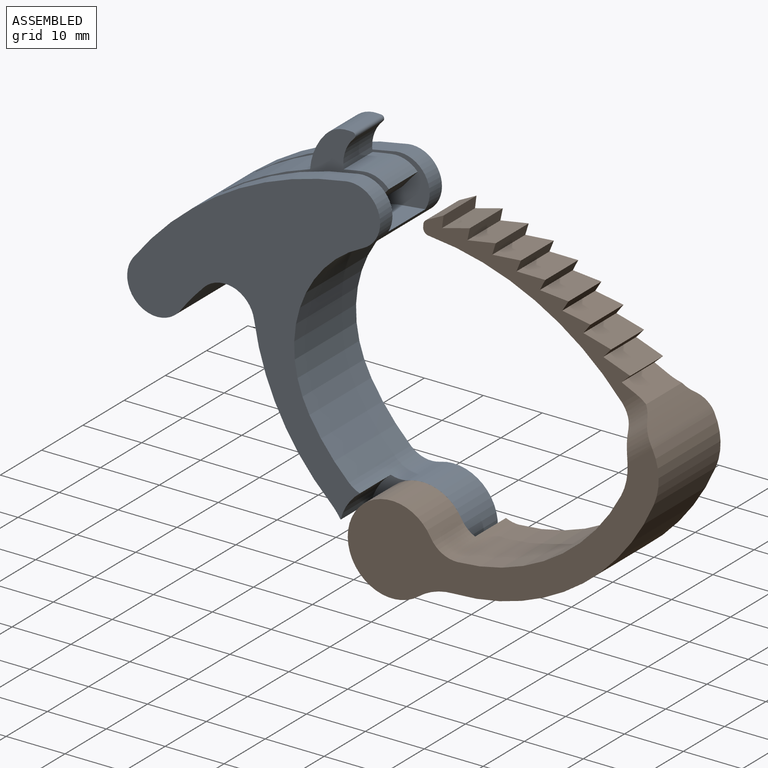
[diagram: assembled view]
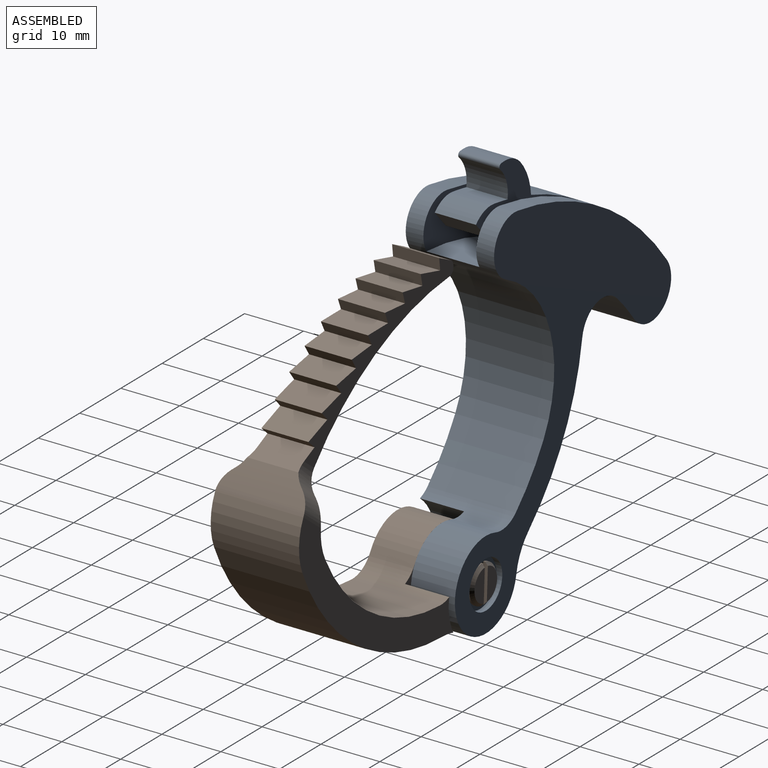
[diagram: assembled view, second angle]
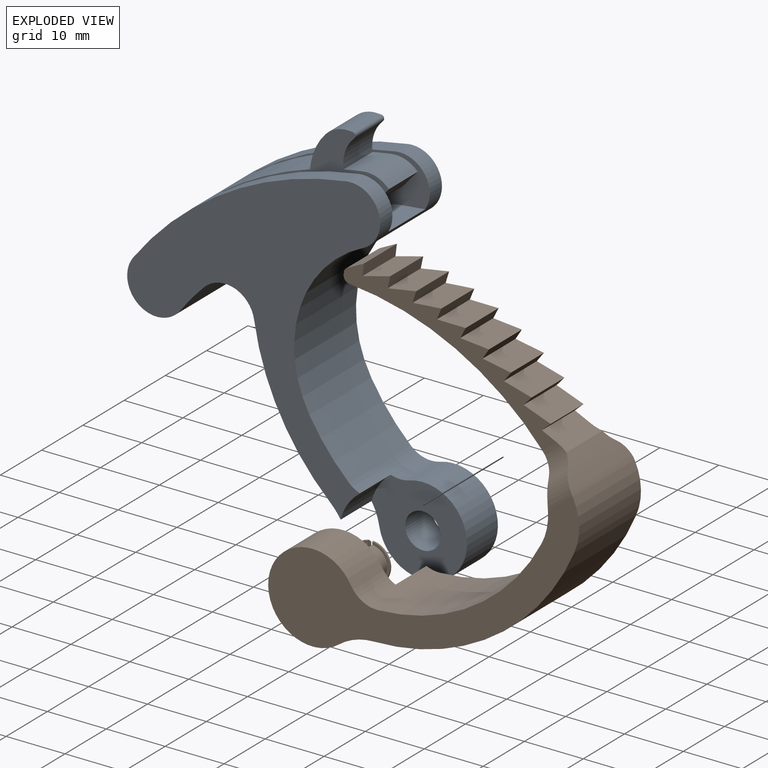
[diagram: exploded view]
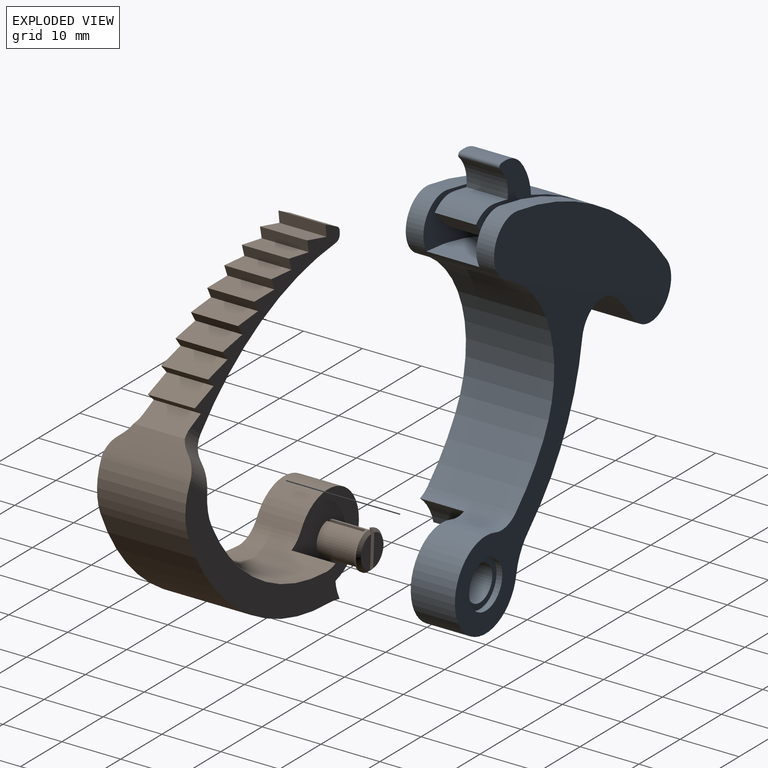
[diagram: exploded view, second angle]
ASSEMBLY  parts=2 mates=2
PART A: 36 faces, bbox 52.5x15x67.6 mm
  f0: cylinder r=3mm len=6.5mm, axis (0,1,0), area 122.5mm2, adj f20,f35
  f1: cylinder r=53mm len=37.1mm, axis (0,1,0), area 348.8mm2, adj f3,f4,f22,f23,f24,f25,f26,f31
  f2: cylinder r=55mm len=36.25mm, axis (0,1,0), area 531.6mm2, adj f3,f4,f6,f12,f13,f14,f22,f23
  f3: plane 1.64x1.15mm, normal (0.82,0,0.57), area 2mm2, adj f1,f2,f24,f25
  f4: plane 1.64x1.15mm, normal (0.82,0,0.57), area 2mm2, adj f1,f2,f22,f23
  f5: cylinder r=5mm len=7mm, axis (0,1,0), area 33.8mm2, adj f7,f23,f24,f30
  f6: cylinder r=5mm len=15mm, axis (0,1,0), area 112.5mm2, adj f2,f13,f14,f17,f21,f22,f25
  f7: cylinder r=55mm len=7mm, axis (0,1,0), area 23.4mm2, adj f5,f23,f24,f27
  f8: cylinder r=7.5mm len=15mm, axis (0,1,0), area 273.1mm2, adj f14,f16,f18,f20
  f9: cylinder r=45mm len=15mm, axis (0,1,0), area 93.5mm2, adj f12,f13,f14,f15
  f10: cylinder r=42.5mm len=24.62mm, axis (0,1,0), area 425.2mm2, adj f13,f14,f15,f18
  f11: cylinder r=37.5mm len=15mm, axis (0,1,0), area 164.6mm2, adj f13,f14,f16,f17
  f12: cylinder r=5mm len=15mm, axis (0,1,0), area 235.6mm2, adj f2,f9,f13,f14
  f13: plane 52.24x42.96mm, normal (0,-1,0), area 765.1mm2, adj f2,f6,f9,f10,f11,f12,f15,f16
  f14: plane 62.01x52.46mm, normal (0,1,0), area 902.4mm2, adj f2,f6,f8,f9,f10,f11,f12,f15
  f15: cylinder r=5mm len=15mm, axis (0,1,0), area 165.5mm2, adj f9,f10,f13,f14
  f16: cylinder r=5mm len=15mm, axis (0,1,0), area 56.5mm2, adj f8,f11,f13,f14,f19,f20
  f17: cylinder r=20mm len=28.05mm, axis (0,1,0), area 497.3mm2, adj f6,f11,f13,f14
  f18: cylinder r=10mm len=15mm, axis (0,-1,0), area 69.2mm2, adj f8,f10,f13,f14,f19,f20
  f19: cylinder r=9mm len=7.5mm, axis (0,-1,0), area 45mm2, adj f13,f16,f18,f20
  f20: plane 16.21x15mm, normal (0,-1,0), area 159.4mm2, adj f0,f8,f16,f18,f19
  f21: cylinder r=47mm len=35.78mm, axis (0,1,0), area 381.5mm2, adj f6,f22,f25,f26
  f22: plane 41.42x27.55mm, normal (0,-1,0), area 330.5mm2, adj f1,f2,f4,f6,f21,f26
  f23: plane 28.22x16.66mm, normal (0,1,0), area 92.3mm2, adj f1,f2,f4,f5,f7,f27,f28,f29
  f24: plane 28.22x16.66mm, normal (0,-1,0), area 92.3mm2, adj f1,f2,f3,f5,f7,f27,f28,f29
  f25: plane 41.42x27.55mm, normal (0,1,0), area 330.5mm2, adj f1,f2,f3,f6,f21,f26
  f26: plane 9x4.92mm, normal (0.57,0,0.82), area 54mm2, adj f1,f21,f22,f25
  f27: cylinder r=6mm len=7mm, axis (0,-1,0), area 40.6mm2, adj f7,f23,f24,f33
  f28: plane 7x0.63mm, normal (0.06,0,1), area 4.4mm2, adj f23,f24,f32,f33
  f29: cylinder r=10mm len=7mm, axis (0,-1,0), area 46.9mm2, adj f2,f23,f24,f32
  f30: plane 7x3mm, normal (0.75,0,-0.66), area 28.1mm2, adj f5,f23,f24,f31
  f31: plane 7x2.73mm, normal (-0.99,0,-0.12), area 19.2mm2, adj f1,f23,f24,f30
  f32: cylinder r=5mm len=7mm, axis (0,-1,0), area 31.1mm2, adj f23,f24,f28,f29
  f33: cylinder r=0.5mm len=7mm, axis (0,-1,0), area 8.2mm2, adj f23,f24,f27,f28
  f34: cylinder r=4mm len=8mm, axis (0,1,0), area 25.1mm2, adj f14,f35
  f35: plane 8x8mm, normal (0,1,0), area 22mm2, adj f0,f34
PART B: 55 faces, bbox 53.8x15x58.8 mm
  f0: cylinder r=2.75mm len=6.7mm, axis (0,-1,0), area 52.8mm2, adj f2,f39,f46
  f1: cylinder r=2.75mm len=6.7mm, axis (0,-1,0), area 52.8mm2, adj f2,f41,f44
  f2: plane 16.5x15mm, normal (0,1,0), area 168mm2, adj f0,f1,f11,f15,f19,f20,f39,f41
  f3: plane 35.48x21.97mm, normal (0,1,0), area 117.4mm2, adj f5,f6,f7,f8,f9,f21,f22,f23
  f4: cylinder r=52mm len=14.77mm, axis (0,-1,0), area 57.1mm2, adj f16,f38,f49,f50,f51,f52,f53,f54
  f5: plane 8x2.94mm, normal (-0.41,0,0.91), area 25.7mm2, adj f3,f8,f18,f35
  f6: plane 8x0.43mm, normal (-0.99,0,0.1), area 3.5mm2, adj f3,f8,f9,f18
  f7: cylinder r=48mm len=33.29mm, axis (0,-1,0), area 320.4mm2, adj f3,f9,f17,f18,f53,f54
  f8: cylinder r=1mm len=8mm, axis (0,-1,0), area 8.4mm2, adj f3,f5,f6,f18
  f9: cylinder r=1mm len=8mm, axis (0,-1,0), area 12.4mm2, adj f3,f6,f7,f18
  f10: plane 38.62x29.86mm, normal (0,1,0), area 242.2mm2, adj f13,f14,f15,f16,f17,f19,f20,f51
  f11: cylinder r=7.5mm len=15mm, axis (0,1,0), area 273.1mm2, adj f2,f12,f19,f20
  f12: plane 53.81x32.69mm, normal (0,-1,0), area 429.9mm2, adj f11,f13,f14,f16,f17,f19,f20,f52
  f13: cylinder r=37.5mm len=35.07mm, axis (0,-1,0), area 650.4mm2, adj f10,f12,f16,f19
  f14: cylinder r=32.5mm len=28.61mm, axis (0,-1,0), area 518.5mm2, adj f10,f12,f17,f20
  f15: cylinder r=9mm len=7.5mm, axis (0,1,0), area 45.1mm2, adj f2,f10,f19,f20
  f16: cylinder r=10mm len=15mm, axis (0,-1,0), area 146.2mm2, adj f4,f10,f12,f13,f51,f52
  f17: cylinder r=10mm len=15mm, axis (0,1,0), area 156.9mm2, adj f7,f10,f12,f14,f49,f50,f51,f52
  f18: plane 35.48x21.97mm, normal (0,-1,0), area 117.4mm2, adj f5,f6,f7,f8,f9,f21,f22,f23
  f19: cylinder r=10mm len=15mm, axis (0,1,0), area 67mm2, adj f2,f10,f11,f12,f13,f15
  f20: cylinder r=5mm len=15mm, axis (0,-1,0), area 58.4mm2, adj f2,f10,f11,f12,f14,f15
  f21: plane 8x1.42mm, normal (0.71,0,-0.7), area 16mm2, adj f3,f18,f22,f34
  f22: plane 8x4.49mm, normal (0.39,0,0.92), area 39mm2, adj f3,f18,f21,f37
  f23: plane 8x1.65mm, normal (0.82,0,-0.57), area 16mm2, adj f3,f18,f24,f32
  f24: plane 8x4.75mm, normal (0.22,0,0.97), area 39mm2, adj f3,f18,f23,f33
  f25: plane 8x1.82mm, normal (0.91,0,-0.42), area 16mm2, adj f3,f18,f26,f30
  f26: plane 8x4.87mm, normal (0.05,0,1), area 39mm2, adj f3,f18,f25,f31
  f27: plane 8x1.94mm, normal (0.97,0,-0.25), area 16mm2, adj f3,f18,f28,f36
  f28: plane 8x4.84mm, normal (-0.12,0,0.99), area 39mm2, adj f3,f18,f27,f29
  f29: plane 8x1.88mm, normal (0.94,0,-0.34), area 16mm2, adj f3,f18,f28,f30
  f30: plane 8x4.87mm, normal (-0.04,0,1), area 39mm2, adj f3,f18,f25,f29
  f31: plane 8x1.74mm, normal (0.87,0,-0.49), area 16mm2, adj f3,f18,f26,f32
  f32: plane 8x4.83mm, normal (0.14,0,0.99), area 39mm2, adj f3,f18,f23,f31
  f33: plane 8x1.54mm, normal (0.77,0,-0.64), area 16mm2, adj f3,f18,f24,f34
  f34: plane 8x4.64mm, normal (0.31,0,0.95), area 39mm2, adj f3,f18,f21,f33
  f35: plane 8x1.97mm, normal (0.99,0,-0.17), area 16mm2, adj f3,f5,f18,f36
  f36: plane 8x4.77mm, normal (-0.21,0,0.98), area 39mm2, adj f3,f18,f27,f35
  f37: plane 8x1.52mm, normal (0.65,0,-0.76), area 16mm2, adj f3,f18,f22,f38
  f38: plane 8.71x4.33mm, normal (0.47,0,0.88), area 39.5mm2, adj f3,f4,f18,f37,f53,f54
  f39: plane 7.51x6.46mm, normal (1,0,0), area 41.4mm2, adj f0,f2,f40,f45,f46,f47
  f40: plane 5.45x2.38mm, normal (0,1,0), area 9.8mm2, adj f39,f47
  f41: plane 7.51x6.46mm, normal (-1,0,0), area 41.4mm2, adj f1,f2,f42,f43,f44,f48
  f42: plane 5.45x2.38mm, normal (0,1,0), area 9.8mm2, adj f41,f48
  f43: cylinder r=3.25mm len=6.46mm, axis (0,1,0), area 2.8mm2, adj f41,f44,f48
  f44: plane 6.46x2.88mm, normal (0,-1,0), area 4.3mm2, adj f1,f41,f43
  f45: cylinder r=3.25mm len=6.46mm, axis (0,1,0), area 2.8mm2, adj f39,f46,f47
  f46: plane 6.46x2.88mm, normal (0,-1,0), area 4.3mm2, adj f0,f39,f45
  f47: cone r=2.75mm half-angle=45deg, axis (0,-1,0), area 6.1mm2, adj f39,f40,f45
  f48: cone r=2.75mm half-angle=45deg, axis (0,-1,0), area 6.1mm2, adj f41,f42,f43
  f49: plane 3.66x2.88mm, normal (-0.41,-0.71,0.58), area 3.3mm2, adj f4,f17,f52,f54
  f50: plane 3.66x2.88mm, normal (-0.41,0.71,0.58), area 3.3mm2, adj f4,f17,f51,f53
  f51: cylinder r=5mm len=6.66mm, axis (-0.82,0,-0.58), area 18.1mm2, adj f4,f10,f16,f17,f50
  f52: cylinder r=5mm len=6.66mm, axis (-0.82,0,-0.58), area 18.1mm2, adj f4,f12,f16,f17,f49
  f53: cylinder r=5mm len=5.39mm, axis (-0.82,0,-0.58), area 15mm2, adj f3,f4,f7,f17,f38,f50
  f54: cylinder r=5mm len=5.39mm, axis (-0.82,0,-0.58), area 15mm2, adj f4,f7,f17,f18,f38,f49
PLACE A at identity fixed
PLACE B rot(axis=(0,-1,0),2.6deg) t=(0,0,0)mm
MATE cylindrical A.f0 <-> B.f0  axis (0,1,0) through (0,-7.5,0)mm
MATE planar B.f2 <-> A.f20  axis (0,1,0) through (-0.5,-7.5,2.7)mm
